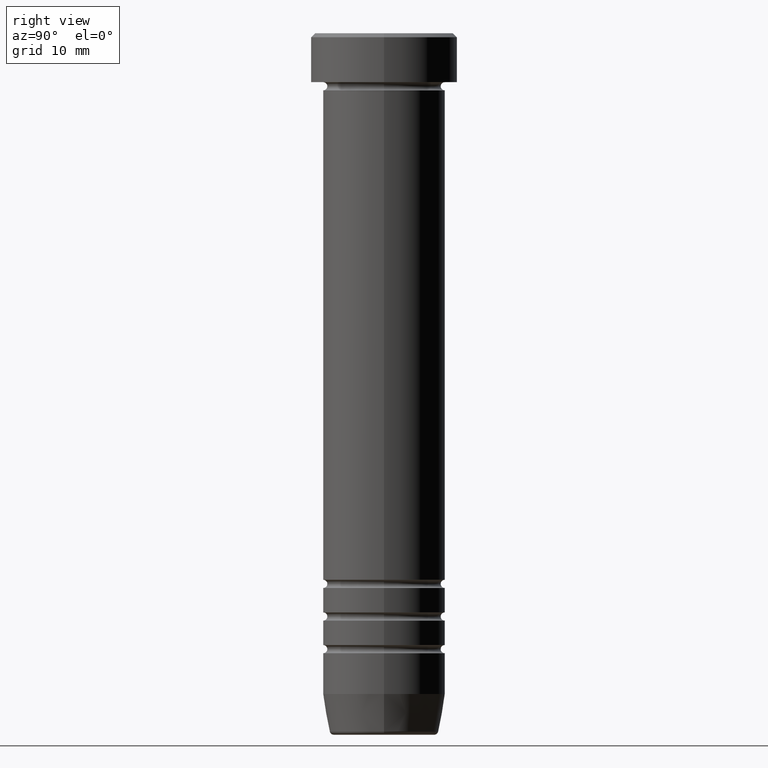
[diagram: clean part render]
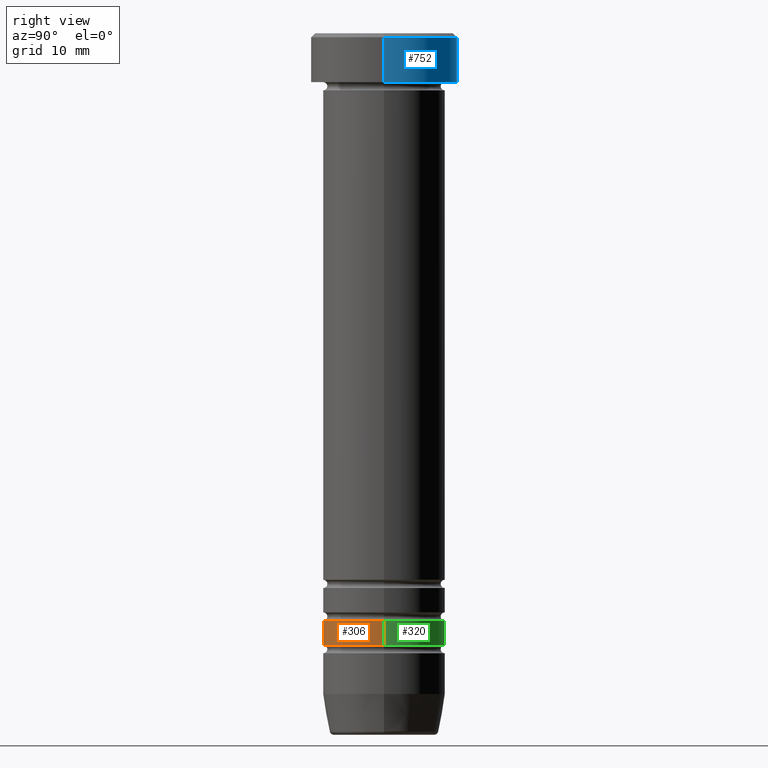
[diagram: same view with three faces highlighted in distinct colors, each labeled with its STEP entity id]
A machine part, right view with three faces highlighted in distinct colors.
Their STEP definitions:

[orange] entity #306 — the highlighted cylindrical surface (partial cylindrical patch) has radius 7.5 mm, axis along (-0, -0, 1).
#8 = VECTOR ( 'NONE', #79, 1000.000000000000000 ) ;
#79 = DIRECTION ( 'NONE',  ( -0.000000000000000000, -0.000000000000000000, 1.000000000000000000 ) ) ;
#115 = DIRECTION ( 'NONE',  ( -0.000000000000000000, -0.000000000000000000, 1.000000000000000000 ) ) ;
#126 = EDGE_CURVE ( 'NONE', #665, #431, #688, .T. ) ;
#211 = CYLINDRICAL_SURFACE ( 'NONE', #1049, 7.499999999999994671 ) ;
#223 = AXIS2_PLACEMENT_3D ( 'NONE', #880, #435, #353 ) ;
#255 = CARTESIAN_POINT ( 'NONE',  ( -7.499999999999994671, 9.184850993605142028E-16, 0.000000000000000000 ) ) ;
#274 = EDGE_CURVE ( 'NONE', #841, #746, #373, .T. ) ;
#287 = EDGE_LOOP ( 'NONE', ( #558, #896, #1046, #821 ) ) ;
#294 = FACE_OUTER_BOUND ( 'NONE', #287, .T. ) ;
#306 = ADVANCED_FACE ( 'NONE', ( #294 ), #211, .T. ) ;
#310 = CARTESIAN_POINT ( 'NONE',  ( 0.000000000000000000, 0.000000000000000000, -75.00000000000000000 ) ) ;
#351 = CIRCLE ( 'NONE', #223, 7.499999999999998224 ) ;
#353 = DIRECTION ( 'NONE',  ( 1.000000000000000000, 0.000000000000000000, 0.000000000000000000 ) ) ;
#373 = LINE ( 'NONE', #895, #606 ) ;
#431 = VERTEX_POINT ( 'NONE', #500 ) ;
#435 = DIRECTION ( 'NONE',  ( -0.000000000000000000, -0.000000000000000000, 1.000000000000000000 ) ) ;
#475 = EDGE_CURVE ( 'NONE', #665, #841, #849, .T. ) ;
#500 = CARTESIAN_POINT ( 'NONE',  ( -7.499999999999998224, 9.184850993605145972E-16, -72.00000000000001421 ) ) ;
#558 = ORIENTED_EDGE ( 'NONE', *, *, #126, .F. ) ;
#561 = CARTESIAN_POINT ( 'NONE',  ( 0.000000000000000000, 0.000000000000000000, 0.000000000000000000 ) ) ;
#573 = EDGE_CURVE ( 'NONE', #431, #746, #351, .T. ) ;
#606 = VECTOR ( 'NONE', #115, 1000.000000000000000 ) ;
#627 = CARTESIAN_POINT ( 'NONE',  ( 7.499999999999998224, 0.000000000000000000, -72.00000000000001421 ) ) ;
#631 = CARTESIAN_POINT ( 'NONE',  ( -7.499999999999991118, 9.184850993605140056E-16, -75.00000000000000000 ) ) ;
#653 = DIRECTION ( 'NONE',  ( 1.000000000000000000, 0.000000000000000000, 0.000000000000000000 ) ) ;
#660 = DIRECTION ( 'NONE',  ( -0.000000000000000000, -0.000000000000000000, 1.000000000000000000 ) ) ;
#665 = VERTEX_POINT ( 'NONE', #631 ) ;
#688 = LINE ( 'NONE', #255, #8 ) ;
#709 = DIRECTION ( 'NONE',  ( -0.000000000000000000, -0.000000000000000000, 1.000000000000000000 ) ) ;
#746 = VERTEX_POINT ( 'NONE', #627 ) ;
#821 = ORIENTED_EDGE ( 'NONE', *, *, #573, .F. ) ;
#841 = VERTEX_POINT ( 'NONE', #1114 ) ;
#849 = CIRCLE ( 'NONE', #1051, 7.499999999999991118 ) ;
#880 = CARTESIAN_POINT ( 'NONE',  ( 0.000000000000000000, 0.000000000000000000, -72.00000000000001421 ) ) ;
#895 = CARTESIAN_POINT ( 'NONE',  ( 7.499999999999994671, 0.000000000000000000, 0.000000000000000000 ) ) ;
#896 = ORIENTED_EDGE ( 'NONE', *, *, #475, .T. ) ;
#931 = DIRECTION ( 'NONE',  ( 1.000000000000000000, 0.000000000000000000, 0.000000000000000000 ) ) ;
#1046 = ORIENTED_EDGE ( 'NONE', *, *, #274, .T. ) ;
#1049 = AXIS2_PLACEMENT_3D ( 'NONE', #561, #709, #653 ) ;
#1051 = AXIS2_PLACEMENT_3D ( 'NONE', #310, #660, #931 ) ;
#1114 = CARTESIAN_POINT ( 'NONE',  ( 7.499999999999991118, 0.000000000000000000, -75.00000000000000000 ) ) ;

[blue] entity #752 — the highlighted cylindrical surface (partial cylindrical patch) has radius 9 mm, axis along (-0, -0, 1).
#29 = DIRECTION ( 'NONE',  ( 0.000000000000000000, 0.000000000000000000, -1.000000000000000000 ) ) ;
#39 = CARTESIAN_POINT ( 'NONE',  ( -9.000000000000000000, 1.102182119232617714E-15, -0.5000000000000023315 ) ) ;
#40 = VERTEX_POINT ( 'NONE', #1057 ) ;
#63 = ORIENTED_EDGE ( 'NONE', *, *, #188, .T. ) ;
#100 = LINE ( 'NONE', #620, #311 ) ;
#136 = CYLINDRICAL_SURFACE ( 'NONE', #751, 9.000000000000000000 ) ;
#161 = EDGE_CURVE ( 'NONE', #1073, #520, #804, .T. ) ;
#163 = VECTOR ( 'NONE', #195, 1000.000000000000000 ) ;
#188 = EDGE_CURVE ( 'NONE', #520, #414, #100, .T. ) ;
#189 = CARTESIAN_POINT ( 'NONE',  ( 0.000000000000000000, 0.000000000000000000, -0.5000000000000023315 ) ) ;
#195 = DIRECTION ( 'NONE',  ( -0.000000000000000000, -0.000000000000000000, 1.000000000000000000 ) ) ;
#208 = EDGE_CURVE ( 'NONE', #1073, #40, #824, .T. ) ;
#254 = EDGE_CURVE ( 'NONE', #414, #40, #332, .T. ) ;
#269 = DIRECTION ( 'NONE',  ( -0.000000000000000000, -0.000000000000000000, 1.000000000000000000 ) ) ;
#298 = DIRECTION ( 'NONE',  ( -0.000000000000000000, -0.000000000000000000, 1.000000000000000000 ) ) ;
#311 = VECTOR ( 'NONE', #269, 1000.000000000000000 ) ;
#332 = CIRCLE ( 'NONE', #402, 9.000000000000000000 ) ;
#402 = AXIS2_PLACEMENT_3D ( 'NONE', #189, #29, #910 ) ;
#414 = VERTEX_POINT ( 'NONE', #39 ) ;
#469 = CARTESIAN_POINT ( 'NONE',  ( 9.000000000000000000, 0.000000000000000000, -6.000000000000000000 ) ) ;
#520 = VERTEX_POINT ( 'NONE', #950 ) ;
#549 = DIRECTION ( 'NONE',  ( 1.000000000000000000, 0.000000000000000000, 0.000000000000000000 ) ) ;
#620 = CARTESIAN_POINT ( 'NONE',  ( -9.000000000000000000, 1.102182119232617714E-15, 0.000000000000000000 ) ) ;
#740 = FACE_OUTER_BOUND ( 'NONE', #805, .T. ) ;
#751 = AXIS2_PLACEMENT_3D ( 'NONE', #1094, #298, #830 ) ;
#752 = ADVANCED_FACE ( 'NONE', ( #740 ), #136, .T. ) ;
#757 = ORIENTED_EDGE ( 'NONE', *, *, #161, .T. ) ;
#771 = AXIS2_PLACEMENT_3D ( 'NONE', #914, #1065, #549 ) ;
#804 = CIRCLE ( 'NONE', #771, 9.000000000000000000 ) ;
#805 = EDGE_LOOP ( 'NONE', ( #757, #63, #1025, #916 ) ) ;
#824 = LINE ( 'NONE', #988, #163 ) ;
#830 = DIRECTION ( 'NONE',  ( 1.000000000000000000, 0.000000000000000000, 0.000000000000000000 ) ) ;
#910 = DIRECTION ( 'NONE',  ( 1.000000000000000000, 0.000000000000000000, 0.000000000000000000 ) ) ;
#914 = CARTESIAN_POINT ( 'NONE',  ( 0.000000000000000000, 0.000000000000000000, -6.000000000000000000 ) ) ;
#916 = ORIENTED_EDGE ( 'NONE', *, *, #208, .F. ) ;
#950 = CARTESIAN_POINT ( 'NONE',  ( -9.000000000000000000, 1.102182119232617714E-15, -6.000000000000000000 ) ) ;
#988 = CARTESIAN_POINT ( 'NONE',  ( 9.000000000000000000, 0.000000000000000000, 0.000000000000000000 ) ) ;
#1025 = ORIENTED_EDGE ( 'NONE', *, *, #254, .T. ) ;
#1057 = CARTESIAN_POINT ( 'NONE',  ( 9.000000000000000000, 0.000000000000000000, -0.5000000000000023315 ) ) ;
#1065 = DIRECTION ( 'NONE',  ( -0.000000000000000000, -0.000000000000000000, 1.000000000000000000 ) ) ;
#1073 = VERTEX_POINT ( 'NONE', #469 ) ;
#1094 = CARTESIAN_POINT ( 'NONE',  ( 0.000000000000000000, 0.000000000000000000, 0.000000000000000000 ) ) ;

[green] entity #320 — the highlighted cylindrical surface (partial cylindrical patch) has radius 7.5 mm, axis along (-0, -0, 1).
#8 = VECTOR ( 'NONE', #79, 1000.000000000000000 ) ;
#79 = DIRECTION ( 'NONE',  ( -0.000000000000000000, -0.000000000000000000, 1.000000000000000000 ) ) ;
#115 = DIRECTION ( 'NONE',  ( -0.000000000000000000, -0.000000000000000000, 1.000000000000000000 ) ) ;
#126 = EDGE_CURVE ( 'NONE', #665, #431, #688, .T. ) ;
#147 = AXIS2_PLACEMENT_3D ( 'NONE', #1132, #342, #604 ) ;
#151 = DIRECTION ( 'NONE',  ( 1.000000000000000000, 0.000000000000000000, 0.000000000000000000 ) ) ;
#152 = ORIENTED_EDGE ( 'NONE', *, *, #126, .T. ) ;
#215 = DIRECTION ( 'NONE',  ( -0.000000000000000000, -0.000000000000000000, 1.000000000000000000 ) ) ;
#255 = CARTESIAN_POINT ( 'NONE',  ( -7.499999999999994671, 9.184850993605142028E-16, 0.000000000000000000 ) ) ;
#274 = EDGE_CURVE ( 'NONE', #841, #746, #373, .T. ) ;
#295 = EDGE_LOOP ( 'NONE', ( #994, #152, #393, #418 ) ) ;
#320 = ADVANCED_FACE ( 'NONE', ( #494 ), #926, .T. ) ;
#342 = DIRECTION ( 'NONE',  ( -0.000000000000000000, -0.000000000000000000, 1.000000000000000000 ) ) ;
#363 = AXIS2_PLACEMENT_3D ( 'NONE', #736, #215, #151 ) ;
#373 = LINE ( 'NONE', #895, #606 ) ;
#393 = ORIENTED_EDGE ( 'NONE', *, *, #459, .F. ) ;
#418 = ORIENTED_EDGE ( 'NONE', *, *, #274, .F. ) ;
#431 = VERTEX_POINT ( 'NONE', #500 ) ;
#459 = EDGE_CURVE ( 'NONE', #746, #431, #480, .T. ) ;
#480 = CIRCLE ( 'NONE', #1015, 7.499999999999998224 ) ;
#494 = FACE_OUTER_BOUND ( 'NONE', #295, .T. ) ;
#500 = CARTESIAN_POINT ( 'NONE',  ( -7.499999999999998224, 9.184850993605145972E-16, -72.00000000000001421 ) ) ;
#604 = DIRECTION ( 'NONE',  ( 1.000000000000000000, 0.000000000000000000, 0.000000000000000000 ) ) ;
#606 = VECTOR ( 'NONE', #115, 1000.000000000000000 ) ;
#627 = CARTESIAN_POINT ( 'NONE',  ( 7.499999999999998224, 0.000000000000000000, -72.00000000000001421 ) ) ;
#631 = CARTESIAN_POINT ( 'NONE',  ( -7.499999999999991118, 9.184850993605140056E-16, -75.00000000000000000 ) ) ;
#665 = VERTEX_POINT ( 'NONE', #631 ) ;
#688 = LINE ( 'NONE', #255, #8 ) ;
#736 = CARTESIAN_POINT ( 'NONE',  ( 0.000000000000000000, 0.000000000000000000, 0.000000000000000000 ) ) ;
#745 = CARTESIAN_POINT ( 'NONE',  ( 0.000000000000000000, 0.000000000000000000, -72.00000000000001421 ) ) ;
#746 = VERTEX_POINT ( 'NONE', #627 ) ;
#841 = VERTEX_POINT ( 'NONE', #1114 ) ;
#895 = CARTESIAN_POINT ( 'NONE',  ( 7.499999999999994671, 0.000000000000000000, 0.000000000000000000 ) ) ;
#926 = CYLINDRICAL_SURFACE ( 'NONE', #363, 7.499999999999994671 ) ;
#982 = EDGE_CURVE ( 'NONE', #841, #665, #1067, .T. ) ;
#994 = ORIENTED_EDGE ( 'NONE', *, *, #982, .T. ) ;
#1006 = DIRECTION ( 'NONE',  ( 1.000000000000000000, 0.000000000000000000, 0.000000000000000000 ) ) ;
#1015 = AXIS2_PLACEMENT_3D ( 'NONE', #745, #1100, #1006 ) ;
#1067 = CIRCLE ( 'NONE', #147, 7.499999999999991118 ) ;
#1100 = DIRECTION ( 'NONE',  ( -0.000000000000000000, -0.000000000000000000, 1.000000000000000000 ) ) ;
#1114 = CARTESIAN_POINT ( 'NONE',  ( 7.499999999999991118, 0.000000000000000000, -75.00000000000000000 ) ) ;
#1132 = CARTESIAN_POINT ( 'NONE',  ( 0.000000000000000000, 0.000000000000000000, -75.00000000000000000 ) ) ;